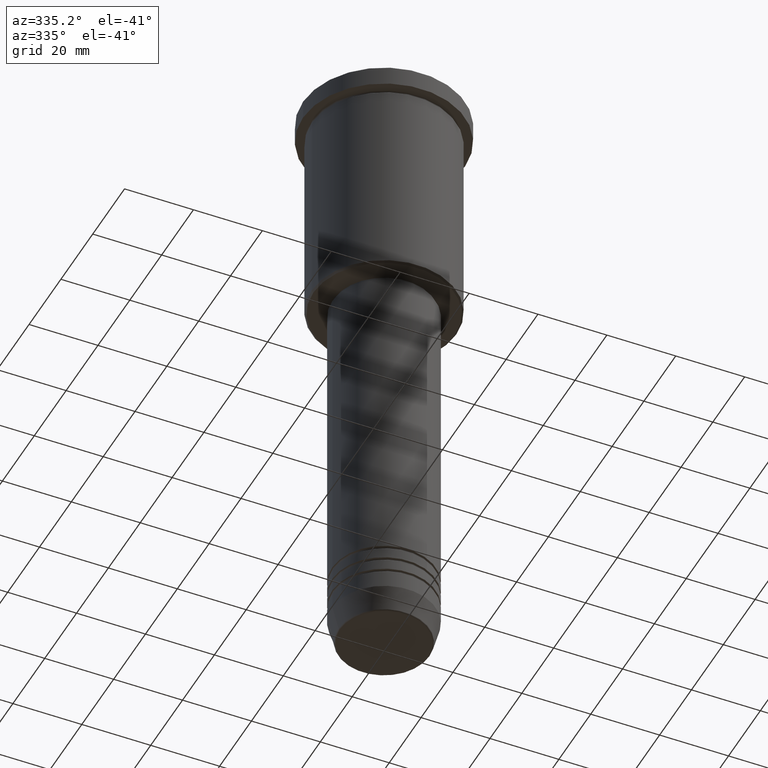
[diagram: clean part render]
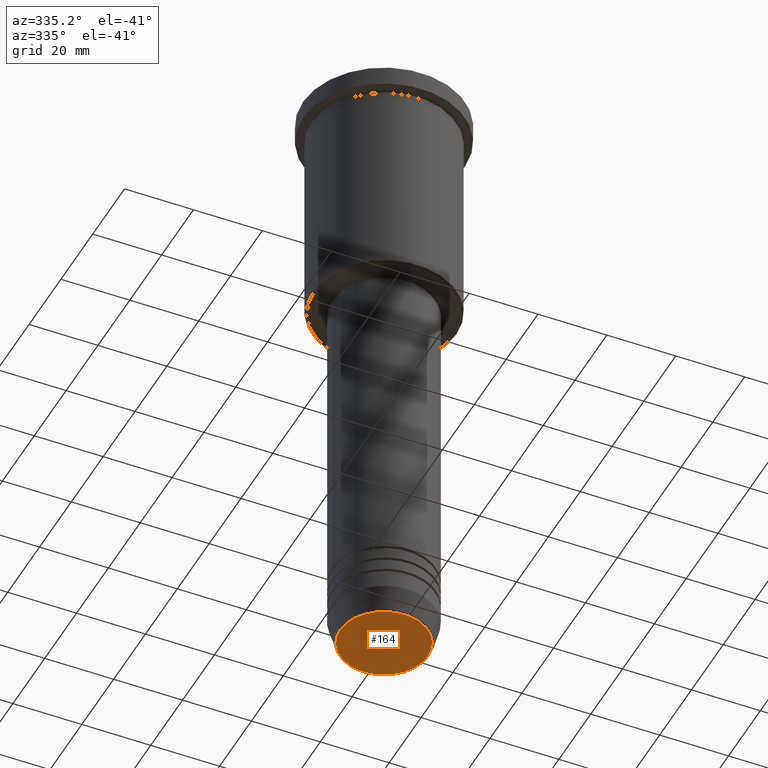
[diagram: same view with one face highlighted and labeled with its STEP entity id]
A machine part, auxiliary view. The second image highlights one B-rep face of the part: STEP entity #164.
In plain terms, the highlighted planar face has unit normal (0, -0, 1).
Its self-contained STEP definition (entity closure, byte-faithful):
#40 = CARTESIAN_POINT ( 'NONE',  ( 0.000000000000000000, 0.000000000000000000, -181.0000000000000000 ) ) ;
#57 = DIRECTION ( 'NONE',  ( 1.000000000000000000, 0.000000000000000000, 0.000000000000000000 ) ) ;
#104 = AXIS2_PLACEMENT_3D ( 'NONE', #894, #222, #808 ) ;
#131 = PLANE ( 'NONE',  #830 ) ;
#164 = ADVANCED_FACE ( 'NONE', ( #502 ), #131, .F. ) ;
#222 = DIRECTION ( 'NONE',  ( 0.000000000000000000, 0.000000000000000000, -1.000000000000000000 ) ) ;
#225 = DIRECTION ( 'NONE',  ( 0.000000000000000000, -0.000000000000000000, 1.000000000000000000 ) ) ;
#235 = DIRECTION ( 'NONE',  ( 1.000000000000000000, 0.000000000000000000, 0.000000000000000000 ) ) ;
#242 = CARTESIAN_POINT ( 'NONE',  ( -12.74069215899265828, 1.589857736427681035E-15, -181.0000000000000000 ) ) ;
#262 = CARTESIAN_POINT ( 'NONE',  ( 12.74069215899265828, 0.000000000000000000, -181.0000000000000000 ) ) ;
#271 = ORIENTED_EDGE ( 'NONE', *, *, #723, .T. ) ;
#301 = EDGE_LOOP ( 'NONE', ( #271, #536 ) ) ;
#458 = CIRCLE ( 'NONE', #104, 12.74069215899265828 ) ;
#502 = FACE_OUTER_BOUND ( 'NONE', #301, .T. ) ;
#536 = ORIENTED_EDGE ( 'NONE', *, *, #852, .T. ) ;
#723 = EDGE_CURVE ( 'NONE', #920, #866, #954, .T. ) ;
#808 = DIRECTION ( 'NONE',  ( 1.000000000000000000, 0.000000000000000000, 0.000000000000000000 ) ) ;
#830 = AXIS2_PLACEMENT_3D ( 'NONE', #40, #225, #57 ) ;
#852 = EDGE_CURVE ( 'NONE', #866, #920, #458, .T. ) ;
#866 = VERTEX_POINT ( 'NONE', #242 ) ;
#894 = CARTESIAN_POINT ( 'NONE',  ( 0.000000000000000000, 0.000000000000000000, -181.0000000000000000 ) ) ;
#920 = VERTEX_POINT ( 'NONE', #262 ) ;
#954 = CIRCLE ( 'NONE', #1145, 12.74069215899265828 ) ;
#990 = DIRECTION ( 'NONE',  ( 0.000000000000000000, 0.000000000000000000, -1.000000000000000000 ) ) ;
#1077 = CARTESIAN_POINT ( 'NONE',  ( 0.000000000000000000, 0.000000000000000000, -181.0000000000000000 ) ) ;
#1145 = AXIS2_PLACEMENT_3D ( 'NONE', #1077, #990, #235 ) ;